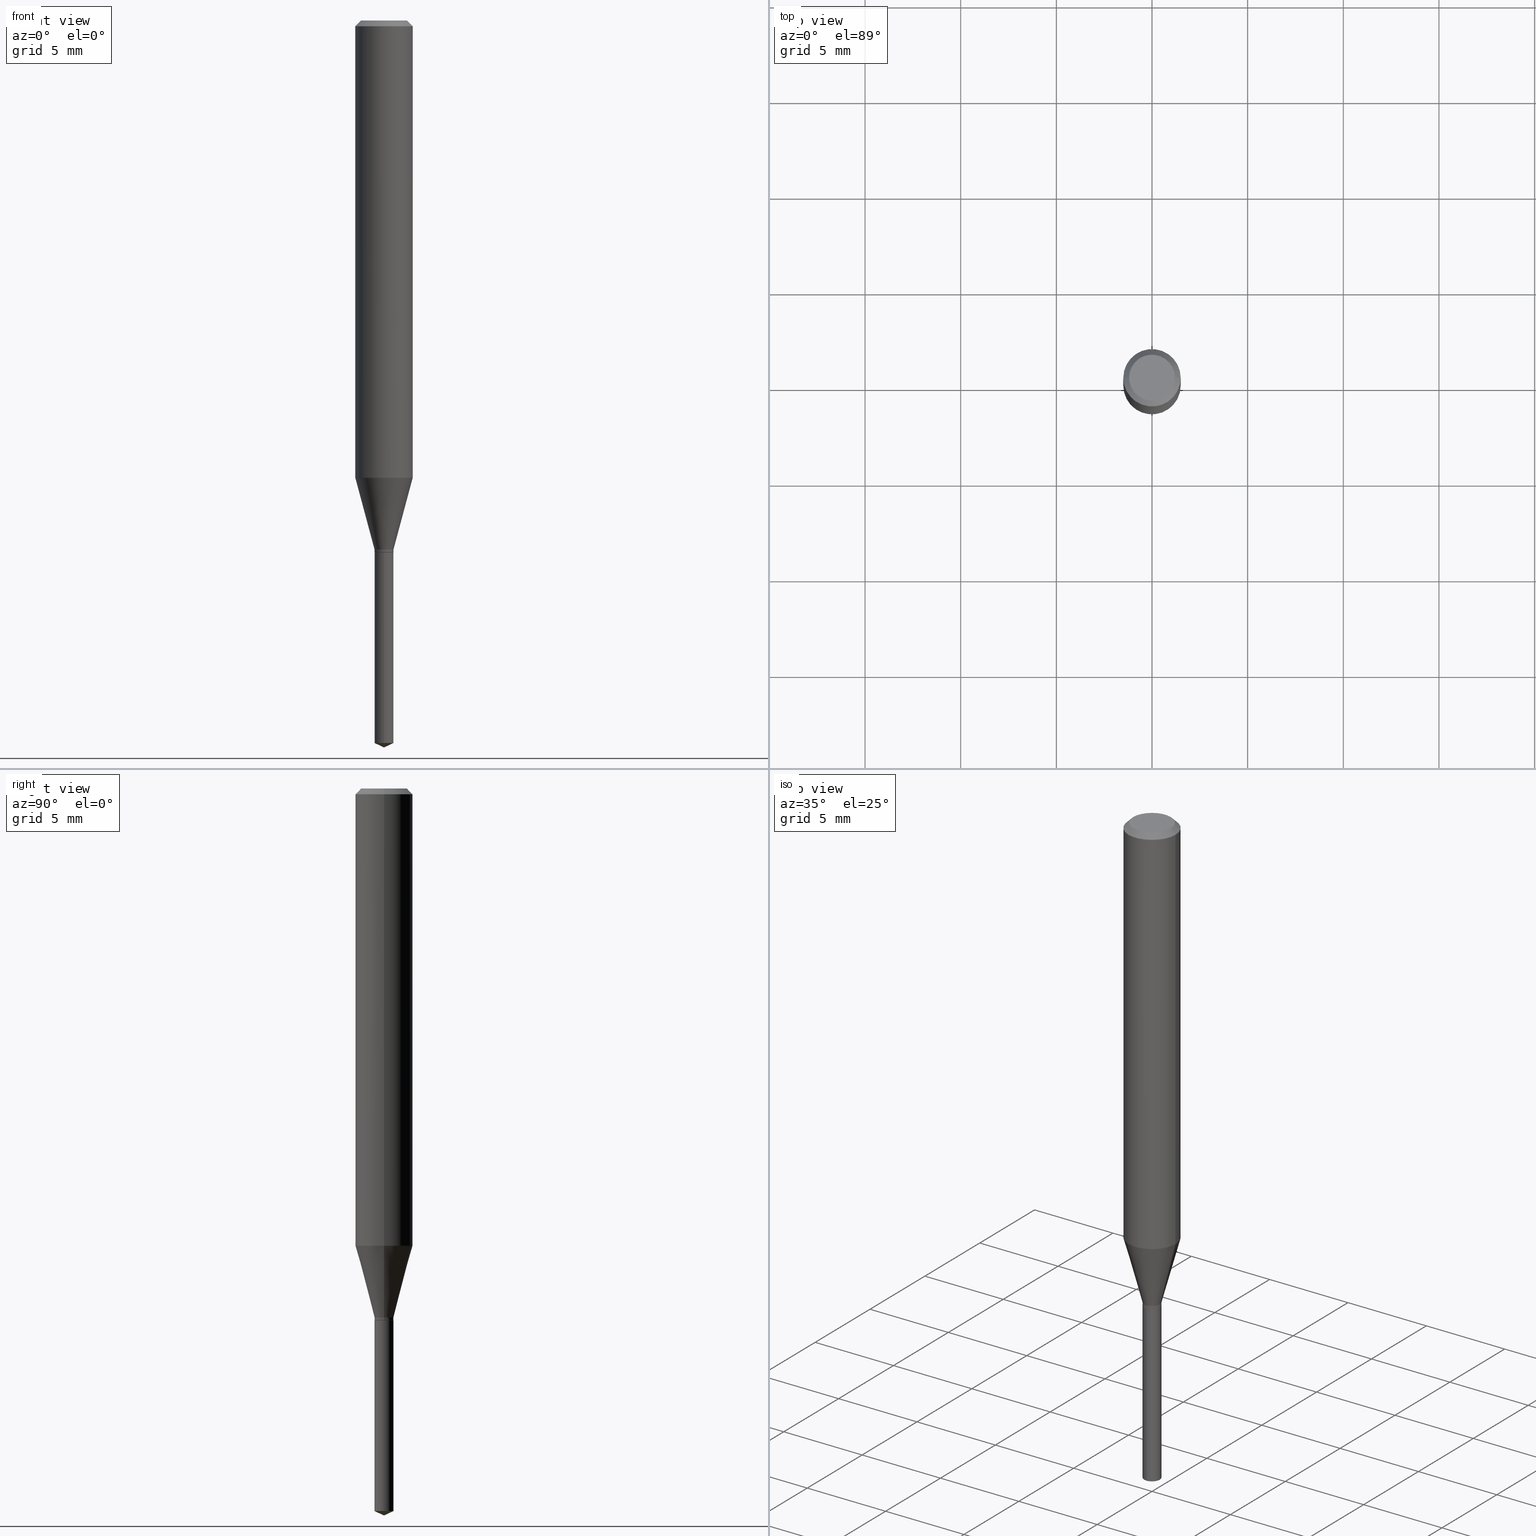
[diagram: canonical four-view strip — front | top / right | iso, engineering-drawing reading convention]
A machine part, canonical four-view strip (front | top / right | iso — engineering-drawing reading convention). The complete STEP part file that produces these views, byte-faithful:
ISO-10303-21;
HEADER;
FILE_DESCRIPTION (( 'STEP AP203' ),
    '1' );
FILE_NAME ('08145.STEP',
    '2024-04-24T13:00:46',
    ( '' ),
    ( '' ),
    'SwSTEP 2.0',
    'SolidWorks 2023',
    '' );
FILE_SCHEMA (( 'CONFIG_CONTROL_DESIGN' ));
ENDSEC;

DATA;
#1 = ORIENTED_EDGE ( 'NONE', *, *, #316, .F. ) ;
#2 = LINE ( 'NONE', #190, #179 ) ;
#3 = ADVANCED_FACE ( 'NONE', ( #29 ), #428, .T. ) ;
#4 = EDGE_LOOP ( 'NONE', ( #352, #383 ) ) ;
#5 = ORIENTED_EDGE ( 'NONE', *, *, #468, .F. ) ;
#6 = AXIS2_PLACEMENT_3D ( 'NONE', #239, #388, #199 ) ;
#7 = VECTOR ( 'NONE', #143, 39.37007874015748143 ) ;
#8 = DIRECTION ( 'NONE',  ( 1.000000000000000000, -6.982962677686258033E-15, 0.000000000000000000 ) ) ;
#9 = EDGE_CURVE ( 'NONE', #385, #34, #44, .T. ) ;
#10 = CARTESIAN_POINT ( 'NONE',  ( -1.361677722148554121E-16, -0.01950000000000381983, -1.094499999999999806 ) ) ;
#11 = CARTESIAN_POINT ( 'NONE',  ( 3.658653776152657051E-29, -5.223622565778476142E-15, -1.496099999999999985 ) ) ;
#12 = CIRCLE ( 'NONE', #120, 0.01949999999999999997 ) ;
#13 = CC_DESIGN_APPROVAL ( #454, ( #413 ) ) ;
#14 = DIRECTION ( 'NONE',  ( 1.000000000000000000, -6.982962677686258033E-15, 0.000000000000000000 ) ) ;
#15 = EDGE_CURVE ( 'NONE', #148, #189, #265, .T. ) ;
#16 = DATE_AND_TIME ( #50, #321 ) ;
#17 = DIRECTION ( 'NONE',  ( 1.000000000000000000, -6.982962677686265922E-15, 4.876176775795935793E-29 ) ) ;
#18 = CARTESIAN_POINT ( 'NONE',  ( 2.888098660104663328E-31, -4.123439461173779030E-17, -0.01181000000000006871 ) ) ;
#19 = LINE ( 'NONE', #174, #125 ) ;
#20 = DATE_AND_TIME ( #391, #243 ) ;
#21 = CARTESIAN_POINT ( 'NONE',  ( 0.01899999999999999953, -3.954102616239861778E-15, -1.094499999999999806 ) ) ;
#22 =( LENGTH_UNIT ( ) NAMED_UNIT ( * ) SI_UNIT ( $, .METRE. ) );
#23 = LINE ( 'NONE', #449, #386 ) ;
#24 = AXIS2_PLACEMENT_3D ( 'NONE', #251, #358, #17 ) ;
#25 = AXIS2_PLACEMENT_3D ( 'NONE', #410, #71, #335 ) ;
#26 = ORIENTED_EDGE ( 'NONE', *, *, #86, .F. ) ;
#27 = CARTESIAN_POINT ( 'NONE',  ( 2.676565608369631794E-29, -3.821426325363822773E-15, -1.094499999999999806 ) ) ;
#28 = EDGE_CURVE ( 'NONE', #73, #189, #210, .T. ) ;
#29 = FACE_OUTER_BOUND ( 'NONE', #112, .T. ) ;
#30 = DIRECTION ( 'NONE',  ( 1.000000000000000000, -6.982962677686266711E-15, 0.000000000000000000 ) ) ;
#31 = DIRECTION ( 'NONE',  ( -2.445460715294871217E-29, 3.491492925458510144E-15, 1.000000000000000000 ) ) ;
#32 = ORIENTED_EDGE ( 'NONE', *, *, #465, .F. ) ;
#33 = CARTESIAN_POINT ( 'NONE',  ( 0.000000000000000000, 0.000000000000000000, 0.000000000000000000 ) ) ;
#34 = VERTEX_POINT ( 'NONE', #109 ) ;
#35 = EDGE_CURVE ( 'NONE', #332, #180, #188, .T. ) ;
#36 = VECTOR ( 'NONE', #312, 39.37007874015748143 ) ;
#37 = CONICAL_SURFACE ( 'NONE', #439, 84.42940631927528727, 1.134464013796320225 ) ;
#38 = CARTESIAN_POINT ( 'NONE',  ( -0.01949999999999999997, -3.662270751991428189E-15, -1.088600000000000012 ) ) ;
#39 = DIRECTION ( 'NONE',  ( 1.000000000000000000, -6.982962677686258033E-15, 0.000000000000000000 ) ) ;
#40 = ORIENTED_EDGE ( 'NONE', *, *, #15, .F. ) ;
#41 = LINE ( 'NONE', #279, #320 ) ;
#42 = MANIFOLD_SOLID_BREP ( 'Body-Move/Copy2[1]', #462 ) ;
#43 = VERTEX_POINT ( 'NONE', #341 ) ;
#44 = CIRCLE ( 'NONE', #231, 0.05905000000000010935 ) ;
#45 = APPROVAL_PERSON_ORGANIZATION ( #132, #482, #62 ) ;
#46 = CARTESIAN_POINT ( 'NONE',  ( 2.662137342413139764E-29, -3.800826585464648242E-15, -1.088600000000000012 ) ) ;
#47 = EDGE_CURVE ( 'NONE', #34, #385, #250, .T. ) ;
#48 = DIRECTION ( 'NONE',  ( -2.445468806185136597E-29, 3.491481338843145583E-15, 1.000000000000000000 ) ) ;
#49 = CONICAL_SURFACE ( 'NONE', #328, 84.42940631927528727, 1.134464013796320225 ) ;
#50 = CALENDAR_DATE ( 2024, 24, 4 ) ;
#51 = AXIS2_PLACEMENT_3D ( 'NONE', #272, #202, #344 ) ;
#52 = CARTESIAN_POINT ( 'NONE',  ( 1.385558334732559469E-16, 0.01949999999999617664, -1.094499999999999806 ) ) ;
#53 = PERSON_AND_ORGANIZATION ( #483, #381 ) ;
#54 = CARTESIAN_POINT ( 'NONE',  ( 0.01949999999999999997, -3.936994357679530254E-15, -1.088600000000000012 ) ) ;
#55 = CALENDAR_DATE ( 2024, 24, 4 ) ;
#56 = DIRECTION ( 'NONE',  ( -1.000000000000000000, 6.982962677686266711E-15, 0.000000000000000000 ) ) ;
#57 = PERSON_AND_ORGANIZATION_ROLE ( 'classification_officer' ) ;
#58 = DESIGN_CONTEXT ( 'detailed design', #421, 'design' ) ;
#59 = ADVANCED_FACE ( 'NONE', ( #460 ), #221, .T. ) ;
#60 = CC_DESIGN_APPROVAL ( #339, ( #105 ) ) ;
#61 = CARTESIAN_POINT ( 'NONE',  ( 0.05904999999999999832, -4.463468013801466955E-16, -0.01181000000000006871 ) ) ;
#62 = APPROVAL_ROLE ( '' ) ;
#63 = FACE_OUTER_BOUND ( 'NONE', #276, .T. ) ;
#64 =( NAMED_UNIT ( * ) PLANE_ANGLE_UNIT ( ) SI_UNIT ( $, .RADIAN. ) );
#65 = ORIENTED_EDGE ( 'NONE', *, *, #215, .F. ) ;
#66 = EDGE_CURVE ( 'NONE', #148, #157, #12, .T. ) ;
#67 = FACE_OUTER_BOUND ( 'NONE', #342, .T. ) ;
#68 = EDGE_LOOP ( 'NONE', ( #373, #119, #389, #5 ) ) ;
#69 = CIRCLE ( 'NONE', #348, 0.05904999999999999832 ) ;
#70 = EDGE_LOOP ( 'NONE', ( #65, #266 ) ) ;
#71 = DIRECTION ( 'NONE',  ( -2.445468806185136597E-29, 3.491481338843145583E-15, 1.000000000000000000 ) ) ;
#72 = EDGE_LOOP ( 'NONE', ( #481, #194, #26, #153 ) ) ;
#73 = VERTEX_POINT ( 'NONE', #10 ) ;
#74 = CYLINDRICAL_SURFACE ( 'NONE', #402, 0.05905000000000005383 ) ;
#75 = CARTESIAN_POINT ( 'NONE',  ( 2.676565608369631794E-29, -3.821426325363822773E-15, -1.094499999999999806 ) ) ;
#76 = ORIENTED_EDGE ( 'NONE', *, *, #175, .F. ) ;
#77 = CARTESIAN_POINT ( 'NONE',  ( 3.636426058976498027E-29, -5.191861741382022382E-15, -1.487007000665977685 ) ) ;
#78 = ORIENTED_EDGE ( 'NONE', *, *, #236, .T. ) ;
#79 = LINE ( 'NONE', #38, #197 ) ;
#80 = ORIENTED_EDGE ( 'NONE', *, *, #104, .T. ) ;
#81 = PERSON_AND_ORGANIZATION ( #483, #381 ) ;
#82 = EDGE_LOOP ( 'NONE', ( #1, #78, #414, #225 ) ) ;
#83 = PRODUCT_RELATED_PRODUCT_CATEGORY ( 'detail', '', ( #489 ) ) ;
#84 = AXIS2_PLACEMENT_3D ( 'NONE', #425, #201, #89 ) ;
#85 = CARTESIAN_POINT ( 'NONE',  ( 3.636426058976498027E-29, -5.191861741382022382E-15, -1.487007000665977685 ) ) ;
#86 = EDGE_CURVE ( 'NONE', #43, #343, #292, .T. ) ;
#87 = ORIENTED_EDGE ( 'NONE', *, *, #15, .T. ) ;
#88 = EDGE_CURVE ( 'NONE', #382, #367, #346, .T. ) ;
#89 = DIRECTION ( 'NONE',  ( -1.000000000000000000, 6.982962677686265922E-15, -4.876176775795935793E-29 ) ) ;
#90 = APPLICATION_CONTEXT ( 'configuration controlled 3d designs of mechanical parts and assemblies' ) ;
#91 = APPROVAL_STATUS ( 'not_yet_approved' ) ;
#92 = CIRCLE ( 'NONE', #277, 0.04724000000000000421 ) ;
#93 = FACE_OUTER_BOUND ( 'NONE', #345, .T. ) ;
#94 = CIRCLE ( 'NONE', #150, 0.01949999999999999997 ) ;
#95 = APPROVAL_DATE_TIME ( #16, #482 ) ;
#96 = ADVANCED_FACE ( 'NONE', ( #351 ), #127, .F. ) ;
#97 = FACE_OUTER_BOUND ( 'NONE', #72, .T. ) ;
#98 = APPROVAL_DATE_TIME ( #139, #339 ) ;
#99 = LINE ( 'NONE', #61, #269 ) ;
#100 = EDGE_CURVE ( 'NONE', #230, #157, #354, .T. ) ;
#101 = PERSON_AND_ORGANIZATION ( #483, #381 ) ;
#102 = DIRECTION ( 'NONE',  ( -2.445460715294871217E-29, 3.491492925458510144E-15, 1.000000000000000000 ) ) ;
#103 = VECTOR ( 'NONE', #166, 39.37007874015748143 ) ;
#104 = EDGE_CURVE ( 'NONE', #382, #343, #41, .T. ) ;
#105 = SECURITY_CLASSIFICATION ( '', '', #247 ) ;
#106 = DIRECTION ( 'NONE',  ( -2.445468806185136597E-29, 3.491481338843145583E-15, 1.000000000000000000 ) ) ;
#107 = DIRECTION ( 'NONE',  ( 2.445460715294871217E-29, -3.491492925458510144E-15, -1.000000000000000000 ) ) ;
#108 = DIRECTION ( 'NONE',  ( -6.982962677686264344E-15, -1.000000000000000000, 0.000000000000000000 ) ) ;
#109 = CARTESIAN_POINT ( 'NONE',  ( 0.05905000000000010935, -3.697818775159981807E-15, -0.9409973905606506817 ) ) ;
#110 = LENGTH_MEASURE_WITH_UNIT ( LENGTH_MEASURE( 0.02539999999999999897 ), #22 );
#111 = APPROVAL_PERSON_ORGANIZATION ( #432, #339, #319 ) ;
#112 = EDGE_LOOP ( 'NONE', ( #370, #268, #224, #155 ) ) ;
#113 = FACE_OUTER_BOUND ( 'NONE', #4, .T. ) ;
#114 = DIRECTION ( 'NONE',  ( -2.445468806185136597E-29, 3.491481338843145583E-15, 1.000000000000000000 ) ) ;
#115 = LINE ( 'NONE', #152, #7 ) ;
#116 = DIRECTION ( 'NONE',  ( 1.000000000000000000, -6.982962677686255667E-15, 0.000000000000000000 ) ) ;
#117 = ORIENTED_EDGE ( 'NONE', *, *, #459, .F. ) ;
#118 = DIRECTION ( 'NONE',  ( -2.445468806185136597E-29, 3.491481338843145583E-15, 1.000000000000000000 ) ) ;
#119 = ORIENTED_EDGE ( 'NONE', *, *, #290, .T. ) ;
#120 = AXIS2_PLACEMENT_3D ( 'NONE', #85, #198, #458 ) ;
#121 = EDGE_LOOP ( 'NONE', ( #479, #87, #422, #327 ) ) ;
#122 = CIRCLE ( 'NONE', #393, 0.01899999999999999953 ) ;
#123 = FACE_OUTER_BOUND ( 'NONE', #490, .T. ) ;
#124 = CARTESIAN_POINT ( 'NONE',  ( 2.888098660104663328E-31, -4.123439461173779030E-17, -0.01181000000000006871 ) ) ;
#125 = VECTOR ( 'NONE', #440, 39.37007874015748854 ) ;
#126 = CC_DESIGN_SECURITY_CLASSIFICATION ( #105, ( #487 ) ) ;
#127 = PLANE ( 'NONE',  #84 ) ;
#128 = EDGE_CURVE ( 'NONE', #157, #73, #195, .T. ) ;
#129 = APPLICATION_PROTOCOL_DEFINITION ( 'international standard', 'config_control_design', 1994, #90 ) ;
#130 =( NAMED_UNIT ( * ) SI_UNIT ( $, .STERADIAN. ) SOLID_ANGLE_UNIT ( ) );
#131 = DIRECTION ( 'NONE',  ( 1.000000000000000000, -6.982962677686258033E-15, 0.000000000000000000 ) ) ;
#132 = PERSON_AND_ORGANIZATION ( #483, #381 ) ;
#133 = CARTESIAN_POINT ( 'NONE',  ( 2.675342873966538993E-29, -3.819680584694400481E-15, -1.093999999999999861 ) ) ;
#134 = AXIS2_PLACEMENT_3D ( 'NONE', #480, #296, #329 ) ;
#135 = COORDINATED_UNIVERSAL_TIME_OFFSET ( 5, 0, .BEHIND. ) ;
#136 = FACE_OUTER_BOUND ( 'NONE', #70, .T. ) ;
#137 = CARTESIAN_POINT ( 'NONE',  ( -0.01899999999999999953, -3.683773978395292417E-15, -1.094499999999999806 ) ) ;
#138 = CARTESIAN_POINT ( 'NONE',  ( -9.261931828548885815E-28, 1.322367415117763772E-13, 37.87397874015748300 ) ) ;
#139 = DATE_AND_TIME ( #286, #212 ) ;
#140 = EDGE_CURVE ( 'NONE', #463, #406, #310, .T. ) ;
#141 = AXIS2_PLACEMENT_3D ( 'NONE', #211, #466, #131 ) ;
#142 = ORIENTED_EDGE ( 'NONE', *, *, #404, .F. ) ;
#143 = DIRECTION ( 'NONE',  ( -2.445468806185136877E-29, 3.491481338843145188E-15, 1.000000000000000000 ) ) ;
#144 = ORIENTED_EDGE ( 'NONE', *, *, #404, .T. ) ;
#145 = CARTESIAN_POINT ( 'NONE',  ( -0.01949999999999999997, -3.671697751606305097E-15, -1.093999999999999861 ) ) ;
#146 = EDGE_LOOP ( 'NONE', ( #76, #450, #377, #302 ) ) ;
#147 = DIRECTION ( 'NONE',  ( 1.000000000000000000, -6.982962677686255667E-15, 0.000000000000000000 ) ) ;
#148 = VERTEX_POINT ( 'NONE', #309 ) ;
#149 = AXIS2_PLACEMENT_3D ( 'NONE', #218, #437, #289 ) ;
#150 = AXIS2_PLACEMENT_3D ( 'NONE', #267, #378, #333 ) ;
#151 = CC_DESIGN_DATE_AND_TIME_ASSIGNMENT ( #473, #364, ( #105 ) ) ;
#152 = CARTESIAN_POINT ( 'NONE',  ( 0.05905000000000005383, -4.123439461173744271E-16, 2.879382386107502672E-30 ) ) ;
#153 = ORIENTED_EDGE ( 'NONE', *, *, #360, .F. ) ;
#154 = UNCERTAINTY_MEASURE_WITH_UNIT (LENGTH_MEASURE( 1.000000000000000082E-05 ), #387, 'distance_accuracy_value', 'NONE');
#155 = ORIENTED_EDGE ( 'NONE', *, *, #252, .F. ) ;
#156 = DIRECTION ( 'NONE',  ( -2.445460715294871217E-29, 3.491492925458510144E-15, 1.000000000000000000 ) ) ;
#157 = VERTEX_POINT ( 'NONE', #455 ) ;
#158 = ADVANCED_FACE ( 'NONE', ( #123 ), #209, .T. ) ;
#159 = PRODUCT_DEFINITION_SHAPE ( 'NONE', 'NONE',  #413 ) ;
#160 = EDGE_LOOP ( 'NONE', ( #338, #164 ) ) ;
#161 = ADVANCED_FACE ( 'NONE', ( #97 ), #431, .T. ) ;
#162 = AXIS2_PLACEMENT_3D ( 'NONE', #46, #271, #8 ) ;
#163 = CC_DESIGN_APPROVAL ( #482, ( #487 ) ) ;
#164 = ORIENTED_EDGE ( 'NONE', *, *, #316, .T. ) ;
#165 = AXIS2_PLACEMENT_3D ( 'NONE', #427, #366, #472 ) ;
#166 = DIRECTION ( 'NONE',  ( -6.328713451373388311E-15, -0.9063077870366510469, 0.4226182617406972208 ) ) ;
#167 = PERSON_AND_ORGANIZATION_ROLE ( 'design_owner' ) ;
#168 = DIRECTION ( 'NONE',  ( -2.445468806185136597E-29, 3.491481338843145583E-15, 1.000000000000000000 ) ) ;
#169 = FACE_OUTER_BOUND ( 'NONE', #228, .T. ) ;
#170 = CC_DESIGN_PERSON_AND_ORGANIZATION_ASSIGNMENT ( #355, #167, ( #489 ) ) ;
#171 = CLOSED_SHELL ( 'NONE', ( #430, #240, #161, #254, #158, #232, #59, #451, #185, #96, #173, #3 ) ) ;
#172 = CARTESIAN_POINT ( 'NONE',  ( 2.676565608369631794E-29, -3.821426325363822773E-15, -1.094499999999999806 ) ) ;
#173 = ADVANCED_FACE ( 'NONE', ( #136 ), #475, .F. ) ;
#174 = CARTESIAN_POINT ( 'NONE',  ( 0.01949999999999999997, -3.936994357679530254E-15, -1.088600000000000012 ) ) ;
#175 = EDGE_CURVE ( 'NONE', #385, #343, #287, .T. ) ;
#176 = FACE_OUTER_BOUND ( 'NONE', #214, .T. ) ;
#177 = CYLINDRICAL_SURFACE ( 'NONE', #134, 0.01949999999999999997 ) ;
#178 = VECTOR ( 'NONE', #340, 39.37007874015748143 ) ;
#179 = VECTOR ( 'NONE', #193, 39.37007874015748143 ) ;
#180 = VERTEX_POINT ( 'NONE', #54 ) ;
#181 = DIRECTION ( 'NONE',  ( -2.445460715294871217E-29, 3.491492925458510144E-15, 1.000000000000000000 ) ) ;
#182 = DIRECTION ( 'NONE',  ( 1.000000000000000000, -6.982962677686267499E-15, 0.000000000000000000 ) ) ;
#183 = CARTESIAN_POINT ( 'NONE',  ( -9.261931828548885815E-28, 1.322367415117763772E-13, 37.87397874015748300 ) ) ;
#184 = CARTESIAN_POINT ( 'NONE',  ( 2.676565608369631794E-29, -3.821426325363822773E-15, -1.094499999999999806 ) ) ;
#185 = ADVANCED_FACE ( 'NONE', ( #63 ), #283, .T. ) ;
#186 = FACE_OUTER_BOUND ( 'NONE', #121, .T. ) ;
#187 = VERTEX_POINT ( 'NONE', #21 ) ;
#188 = CIRCLE ( 'NONE', #418, 0.01949999999999999997 ) ;
#189 = VERTEX_POINT ( 'NONE', #52 ) ;
#190 = CARTESIAN_POINT ( 'NONE',  ( 0.01899999999999999953, -3.954102616239861778E-15, -1.094499999999999806 ) ) ;
#191 = CARTESIAN_POINT ( 'NONE',  ( 2.301179765317683209E-29, -3.285474829042607282E-15, -0.9409973905606506817 ) ) ;
#192 = ORIENTED_EDGE ( 'NONE', *, *, #331, .F. ) ;
#193 = DIRECTION ( 'NONE',  ( 0.7071067811865218156, -2.468850131081987665E-15, 0.7071067811865732189 ) ) ;
#194 = ORIENTED_EDGE ( 'NONE', *, *, #175, .T. ) ;
#195 = LINE ( 'NONE', #426, #36 ) ;
#196 = VECTOR ( 'NONE', #444, 39.37007874015748143 ) ;
#197 = VECTOR ( 'NONE', #294, 39.37007874015748854 ) ;
#198 = DIRECTION ( 'NONE',  ( -2.445460715294871217E-29, 3.491492925458510144E-15, 1.000000000000000000 ) ) ;
#199 = DIRECTION ( 'NONE',  ( 1.000000000000000000, -6.982962677686266711E-15, 4.876185090822587894E-29 ) ) ;
#200 = ORIENTED_EDGE ( 'NONE', *, *, #35, .F. ) ;
#201 = DIRECTION ( 'NONE',  ( 2.438088387897960049E-29, -3.491481338843145188E-15, -1.000000000000000000 ) ) ;
#202 = DIRECTION ( 'NONE',  ( 0.000000000000000000, 0.000000000000000000, 1.000000000000000000 ) ) ;
#203 = DIRECTION ( 'NONE',  ( -0.7071067811865453523, 2.468850131082234184E-15, -0.7071067811865496822 ) ) ;
#204 = PERSON_AND_ORGANIZATION_ROLE ( 'design_supplier' ) ;
#205 = LINE ( 'NONE', #374, #178 ) ;
#206 = ADVANCED_FACE ( 'NONE', ( #169 ), #325, .T. ) ;
#207 = COORDINATED_UNIVERSAL_TIME_OFFSET ( 5, 0, .BEHIND. ) ;
#208 = VERTEX_POINT ( 'NONE', #137 ) ;
#209 = CYLINDRICAL_SURFACE ( 'NONE', #237, 0.01949999999999999997 ) ;
#210 = CIRCLE ( 'NONE', #471, 0.01949999999999999997 ) ;
#211 = CARTESIAN_POINT ( 'NONE',  ( 2.662137342413139764E-29, -3.800826585464648242E-15, -1.088600000000000012 ) ) ;
#212 = LOCAL_TIME ( 9, 0, 46.00000000000000000, #217 ) ;
#213 = MANIFOLD_SOLID_BREP ( 'Body-Move/Copy2[2]', #171 ) ;
#214 = EDGE_LOOP ( 'NONE', ( #262, #306, #411 ) ) ;
#215 = EDGE_CURVE ( 'NONE', #187, #208, #379, .T. ) ;
#216 = CARTESIAN_POINT ( 'NONE',  ( 0.000000000000000000, 0.000000000000000000, 0.000000000000000000 ) ) ;
#217 = COORDINATED_UNIVERSAL_TIME_OFFSET ( 5, 0, .BEHIND. ) ;
#218 = CARTESIAN_POINT ( 'NONE',  ( 0.000000000000000000, 0.000000000000000000, 0.000000000000000000 ) ) ;
#219 = ORIENTED_EDGE ( 'NONE', *, *, #434, .F. ) ;
#220 = CARTESIAN_POINT ( 'NONE',  ( -0.04724000000000000421, 3.504923541997677355E-16, -3.380025165670481712E-19 ) ) ;
#221 = CONICAL_SURFACE ( 'NONE', #162, 0.01949999999999999997, 0.2617993877991498519 ) ;
#222 = ORIENTED_EDGE ( 'NONE', *, *, #100, .T. ) ;
#223 = DIRECTION ( 'NONE',  ( -2.445468806185136597E-29, 3.491481338843145583E-15, 1.000000000000000000 ) ) ;
#224 = ORIENTED_EDGE ( 'NONE', *, *, #468, .T. ) ;
#225 = ORIENTED_EDGE ( 'NONE', *, *, #104, .F. ) ;
#226 = CARTESIAN_POINT ( 'NONE',  ( 8.265746106709734507E-48, -1.180129479067563789E-33, -3.380025165646692144E-19 ) ) ;
#227 = DIRECTION ( 'NONE',  ( -6.982962677686264344E-15, -1.000000000000000000, 0.000000000000000000 ) ) ;
#228 = EDGE_LOOP ( 'NONE', ( #40, #380, #448, #192 ) ) ;
#229 = CARTESIAN_POINT ( 'NONE',  ( 0.01949999999999999997, -1.361677722148821841E-16, 9.508544712802074656E-31 ) ) ;
#230 = VERTEX_POINT ( 'NONE', #399 ) ;
#231 = AXIS2_PLACEMENT_3D ( 'NONE', #191, #114, #182 ) ;
#232 = ADVANCED_FACE ( 'NONE', ( #253 ), #433, .T. ) ;
#233 = LINE ( 'NONE', #369, #284 ) ;
#234 = DIRECTION ( 'NONE',  ( 1.000000000000000000, -6.982962677686267499E-15, 0.000000000000000000 ) ) ;
#235 = DIRECTION ( 'NONE',  ( 1.000000000000000000, -6.982962677686266711E-15, 0.000000000000000000 ) ) ;
#236 = EDGE_CURVE ( 'NONE', #367, #43, #99, .T. ) ;
#237 = AXIS2_PLACEMENT_3D ( 'NONE', #216, #168, #361 ) ;
#238 = VECTOR ( 'NONE', #446, 39.37007874015748143 ) ;
#239 = CARTESIAN_POINT ( 'NONE',  ( 8.265746106709734507E-48, -1.180129479067563789E-33, -3.380025165646692144E-19 ) ) ;
#240 = ADVANCED_FACE ( 'NONE', ( #403 ), #408, .T. ) ;
#241 = CALENDAR_DATE ( 2024, 24, 4 ) ;
#242 = AXIS2_PLACEMENT_3D ( 'NONE', #184, #305, #116 ) ;
#243 = LOCAL_TIME ( 9, 0, 46.00000000000000000, #135 ) ;
#244 = DIRECTION ( 'NONE',  ( 1.000000000000000000, -6.982962677686255667E-15, 0.000000000000000000 ) ) ;
#245 = PERSON_AND_ORGANIZATION ( #483, #381 ) ;
#246 = DIRECTION ( 'NONE',  ( 1.000000000000000000, -6.982962677686266711E-15, 4.876176775795935793E-29 ) ) ;
#247 = SECURITY_CLASSIFICATION_LEVEL ( 'unclassified' ) ;
#248 = CARTESIAN_POINT ( 'NONE',  ( 2.888098660104663328E-31, -4.123439461173779030E-17, -0.01181000000000006871 ) ) ;
#249 = DATE_AND_TIME ( #241, #330 ) ;
#250 = CIRCLE ( 'NONE', #368, 0.05905000000000010935 ) ;
#251 = CARTESIAN_POINT ( 'NONE',  ( 2.676565608369631794E-29, -3.821426325363822773E-15, -1.094499999999999806 ) ) ;
#252 = EDGE_CURVE ( 'NONE', #406, #463, #438, .T. ) ;
#253 = FACE_OUTER_BOUND ( 'NONE', #420, .T. ) ;
#254 = ADVANCED_FACE ( 'NONE', ( #93 ), #401, .T. ) ;
#255 = DIRECTION ( 'NONE',  ( 6.982962677686265922E-15, 1.000000000000000000, -3.491492925458510144E-15 ) ) ;
#256 = ORIENTED_EDGE ( 'NONE', *, *, #434, .T. ) ;
#257 = ADVANCED_FACE ( 'NONE', ( #176 ), #49, .T. ) ;
#258 = CARTESIAN_POINT ( 'NONE',  ( -0.01949999999999999997, -3.671697751606305097E-15, -1.088600000000000012 ) ) ;
#259 = AXIS2_PLACEMENT_3D ( 'NONE', #172, #102, #322 ) ;
#260 = ORIENTED_EDGE ( 'NONE', *, *, #419, .T. ) ;
#261 = CIRCLE ( 'NONE', #301, 0.01949999999999999997 ) ;
#262 = ORIENTED_EDGE ( 'NONE', *, *, #100, .F. ) ;
#263 = CARTESIAN_POINT ( 'NONE',  ( 0.04724000000000000421, -3.852183633974369345E-16, -3.380025165621689721E-19 ) ) ;
#264 = CARTESIAN_POINT ( 'NONE',  ( 2.676565608369631794E-29, -3.821426325363822773E-15, -1.094499999999999806 ) ) ;
#265 = LINE ( 'NONE', #334, #196 ) ;
#266 = ORIENTED_EDGE ( 'NONE', *, *, #280, .F. ) ;
#267 = CARTESIAN_POINT ( 'NONE',  ( 2.676565608369631794E-29, -3.821426325363822773E-15, -1.094499999999999806 ) ) ;
#268 = ORIENTED_EDGE ( 'NONE', *, *, #280, .T. ) ;
#269 = VECTOR ( 'NONE', #405, 39.37007874015748143 ) ;
#270 = ORIENTED_EDGE ( 'NONE', *, *, #252, .T. ) ;
#271 = DIRECTION ( 'NONE',  ( -2.445468806185136597E-29, 3.491481338843145583E-15, 1.000000000000000000 ) ) ;
#272 = CARTESIAN_POINT ( 'NONE',  ( 0.000000000000000000, 0.000000000000000000, 0.000000000000000000 ) ) ;
#273 = ORIENTED_EDGE ( 'NONE', *, *, #465, .T. ) ;
#274 = EDGE_CURVE ( 'NONE', #180, #34, #19, .T. ) ;
#275 = AXIS2_PLACEMENT_3D ( 'NONE', #18, #469, #394 ) ;
#276 = EDGE_LOOP ( 'NONE', ( #442, #349, #80, #260 ) ) ;
#277 = AXIS2_PLACEMENT_3D ( 'NONE', #226, #118, #478 ) ;
#278 = ORIENTED_EDGE ( 'NONE', *, *, #66, .F. ) ;
#279 = CARTESIAN_POINT ( 'NONE',  ( -0.05904999999999999832, 3.711095515056362547E-16, -0.01181000000000006871 ) ) ;
#280 = EDGE_CURVE ( 'NONE', #208, #187, #122, .T. ) ;
#281 = CARTESIAN_POINT ( 'NONE',  ( 2.676565608369631794E-29, -3.821426325363822773E-15, -1.094499999999999806 ) ) ;
#282 = COORDINATED_UNIVERSAL_TIME_OFFSET ( 5, 0, .BEHIND. ) ;
#283 = CONICAL_SURFACE ( 'NONE', #275, 0.05904999999999999832, 0.7853981633974452814 ) ;
#284 = VECTOR ( 'NONE', #407, 39.37007874015748143 ) ;
#285 = DIRECTION ( 'NONE',  ( 1.000000000000000000, -6.982962677686258033E-15, 0.000000000000000000 ) ) ;
#286 = CALENDAR_DATE ( 2024, 24, 4 ) ;
#287 = LINE ( 'NONE', #397, #392 ) ;
#288 = APPROVAL_STATUS ( 'not_yet_approved' ) ;
#289 = DIRECTION ( 'NONE',  ( 1.000000000000000000, -6.982962677686265922E-15, 4.876176775795935793E-29 ) ) ;
#290 = EDGE_CURVE ( 'NONE', #208, #406, #205, .T. ) ;
#291 = DATE_TIME_ROLE ( 'creation_date' ) ;
#292 = CIRCLE ( 'NONE', #476, 0.05904999999999999832 ) ;
#293 = DIRECTION ( 'NONE',  ( -2.445468806185136597E-29, 3.491481338843145583E-15, 1.000000000000000000 ) ) ;
#294 = DIRECTION ( 'NONE',  ( -0.2588190451025211281, 5.211531920934547886E-15, 0.9659258262890679791 ) ) ;
#295 = CC_DESIGN_PERSON_AND_ORGANIZATION_ASSIGNMENT ( #53, #204, ( #487 ) ) ;
#296 = DIRECTION ( 'NONE',  ( -2.445460715294871217E-29, 3.491492925458510144E-15, 1.000000000000000000 ) ) ;
#297 = ORIENTED_EDGE ( 'NONE', *, *, #347, .T. ) ;
#298 = LINE ( 'NONE', #229, #238 ) ;
#299 = AXIS2_PLACEMENT_3D ( 'NONE', #365, #318, #246 ) ;
#300 = ORIENTED_EDGE ( 'NONE', *, *, #9, .F. ) ;
#301 = AXIS2_PLACEMENT_3D ( 'NONE', #77, #181, #108 ) ;
#302 = ORIENTED_EDGE ( 'NONE', *, *, #419, .F. ) ;
#303 = DIRECTION ( 'NONE',  ( 1.000000000000000000, -6.982962677686266711E-15, 4.876176775795935793E-29 ) ) ;
#304 = ADVANCED_FACE ( 'NONE', ( #186 ), #177, .T. ) ;
#305 = DIRECTION ( 'NONE',  ( -2.445468806185136597E-29, 3.491481338843145583E-15, 1.000000000000000000 ) ) ;
#306 = ORIENTED_EDGE ( 'NONE', *, *, #459, .T. ) ;
#307 = CARTESIAN_POINT ( 'NONE',  ( 2.888098660104663328E-31, -4.123439461173779030E-17, -0.01181000000000006871 ) ) ;
#308 = CARTESIAN_POINT ( 'NONE',  ( 2.301179765317683209E-29, -3.285474829042607282E-15, -0.9409973905606506817 ) ) ;
#309 = CARTESIAN_POINT ( 'NONE',  ( 1.385558334732558236E-16, 0.01949999999999480274, -1.487007000665977685 ) ) ;
#310 = CIRCLE ( 'NONE', #313, 0.01949999999999999997 ) ;
#311 = APPLICATION_PROTOCOL_DEFINITION ( 'international standard', 'config_control_design', 1994, #421 ) ;
#312 = DIRECTION ( 'NONE',  ( -2.445460715294871217E-29, 3.491492925458510144E-15, 1.000000000000000000 ) ) ;
#313 = AXIS2_PLACEMENT_3D ( 'NONE', #390, #48, #14 ) ;
#314 = ORIENTED_EDGE ( 'NONE', *, *, #47, .F. ) ;
#315 =( GEOMETRIC_REPRESENTATION_CONTEXT ( 3 ) GLOBAL_UNCERTAINTY_ASSIGNED_CONTEXT ( ( #154 ) ) GLOBAL_UNIT_ASSIGNED_CONTEXT ( ( #387, #64, #130 ) ) REPRESENTATION_CONTEXT ( 'NONE', 'WORKASPACE' ) );
#316 = EDGE_CURVE ( 'NONE', #367, #382, #92, .T. ) ;
#317 = DIRECTION ( 'NONE',  ( 2.445468806185136597E-29, -3.491481338843145583E-15, -1.000000000000000000 ) ) ;
#318 = DIRECTION ( 'NONE',  ( -2.445468806185136597E-29, 3.491481338843145583E-15, 1.000000000000000000 ) ) ;
#319 = APPROVAL_ROLE ( '' ) ;
#320 = VECTOR ( 'NONE', #203, 39.37007874015748143 ) ;
#321 = LOCAL_TIME ( 9, 0, 46.00000000000000000, #282 ) ;
#322 = DIRECTION ( 'NONE',  ( -6.982962677686264344E-15, -1.000000000000000000, 0.000000000000000000 ) ) ;
#323 = COORDINATED_UNIVERSAL_TIME_OFFSET ( 5, 0, .BEHIND. ) ;
#324 = CC_DESIGN_PERSON_AND_ORGANIZATION_ASSIGNMENT ( #101, #57, ( #105 ) ) ;
#325 = CYLINDRICAL_SURFACE ( 'NONE', #259, 0.01949999999999999997 ) ;
#326 = DIRECTION ( 'NONE',  ( -2.445460715294871217E-29, 3.491492925458510144E-15, 1.000000000000000000 ) ) ;
#327 = ORIENTED_EDGE ( 'NONE', *, *, #128, .F. ) ;
#328 = AXIS2_PLACEMENT_3D ( 'NONE', #138, #326, #363 ) ;
#329 = DIRECTION ( 'NONE',  ( -6.982962677686264344E-15, -1.000000000000000000, 0.000000000000000000 ) ) ;
#330 = LOCAL_TIME ( 9, 0, 46.00000000000000000, #207 ) ;
#331 = EDGE_CURVE ( 'NONE', #189, #73, #94, .T. ) ;
#332 = VERTEX_POINT ( 'NONE', #258 ) ;
#333 = DIRECTION ( 'NONE',  ( -6.982962677686264344E-15, -1.000000000000000000, 0.000000000000000000 ) ) ;
#334 = CARTESIAN_POINT ( 'NONE',  ( 1.385558334732462587E-16, 0.01949999999999617664, -1.094499999999999806 ) ) ;
#335 = DIRECTION ( 'NONE',  ( 1.000000000000000000, -6.982962677686258033E-15, 0.000000000000000000 ) ) ;
#336 = CARTESIAN_POINT ( 'NONE',  ( 2.662137342413139764E-29, -3.800826585464648242E-15, -1.088600000000000012 ) ) ;
#337 = DIRECTION ( 'NONE',  ( -2.445468806185136597E-29, 3.491481338843145583E-15, 1.000000000000000000 ) ) ;
#338 = ORIENTED_EDGE ( 'NONE', *, *, #88, .T. ) ;
#339 = APPROVAL ( #359, 'UNSPECIFIED' ) ;
#340 = DIRECTION ( 'NONE',  ( -0.7071067811865218156, 7.493145998870261075E-15, 0.7071067811865732189 ) ) ;
#341 = CARTESIAN_POINT ( 'NONE',  ( 0.05904999999999999832, -4.535783407291118600E-16, -0.01181000000000006871 ) ) ;
#342 = EDGE_LOOP ( 'NONE', ( #117, #222, #278 ) ) ;
#343 = VERTEX_POINT ( 'NONE', #443 ) ;
#344 = DIRECTION ( 'NONE',  ( 1.000000000000000000, 0.000000000000000000, 0.000000000000000000 ) ) ;
#345 = EDGE_LOOP ( 'NONE', ( #297, #273, #314, #375 ) ) ;
#346 = CIRCLE ( 'NONE', #6, 0.04724000000000000421 ) ;
#347 = EDGE_CURVE ( 'NONE', #180, #332, #409, .T. ) ;
#348 = AXIS2_PLACEMENT_3D ( 'NONE', #307, #223, #30 ) ;
#349 = ORIENTED_EDGE ( 'NONE', *, *, #88, .F. ) ;
#350 = EDGE_LOOP ( 'NONE', ( #32, #457, #447, #300 ) ) ;
#351 = FACE_OUTER_BOUND ( 'NONE', #160, .T. ) ;
#352 = ORIENTED_EDGE ( 'NONE', *, *, #28, .T. ) ;
#353 = ADVANCED_FACE ( 'NONE', ( #67 ), #37, .T. ) ;
#354 = LINE ( 'NONE', #11, #103 ) ;
#355 = PERSON_AND_ORGANIZATION ( #483, #381 ) ;
#356 = AXIS2_PLACEMENT_3D ( 'NONE', #133, #293, #285 ) ;
#357 = PERSON_AND_ORGANIZATION ( #483, #381 ) ;
#358 = DIRECTION ( 'NONE',  ( -2.438088387897960049E-29, 3.491481338843145188E-15, 1.000000000000000000 ) ) ;
#359 = APPROVAL_STATUS ( 'not_yet_approved' ) ;
#360 = EDGE_CURVE ( 'NONE', #34, #43, #115, .T. ) ;
#361 = DIRECTION ( 'NONE',  ( 1.000000000000000000, -6.982962677686265922E-15, 4.876176775795935793E-29 ) ) ;
#362 = CONICAL_SURFACE ( 'NONE', #477, 0.01899999999999999953, 0.7853981633974119747 ) ;
#363 = DIRECTION ( 'NONE',  ( -6.982962677686266711E-15, -1.000000000000000000, 3.520397390770414427E-15 ) ) ;
#364 = DATE_TIME_ROLE ( 'classification_date' ) ;
#365 = CARTESIAN_POINT ( 'NONE',  ( 0.000000000000000000, 0.000000000000000000, 0.000000000000000000 ) ) ;
#366 = DIRECTION ( 'NONE',  ( -2.445468806185136597E-29, 3.491481338843145583E-15, 1.000000000000000000 ) ) ;
#367 = VERTEX_POINT ( 'NONE', #263 ) ;
#368 = AXIS2_PLACEMENT_3D ( 'NONE', #308, #453, #234 ) ;
#369 = CARTESIAN_POINT ( 'NONE',  ( -0.01949999999999999997, 1.385558334732195360E-16, -9.591923425997065392E-31 ) ) ;
#370 = ORIENTED_EDGE ( 'NONE', *, *, #290, .F. ) ;
#371 = CARTESIAN_POINT ( 'NONE',  ( -0.05905000000000010935, -2.865899343576267000E-15, -0.9409973905606506817 ) ) ;
#372 = ORIENTED_EDGE ( 'NONE', *, *, #347, .F. ) ;
#373 = ORIENTED_EDGE ( 'NONE', *, *, #215, .T. ) ;
#374 = CARTESIAN_POINT ( 'NONE',  ( -0.01899999999999999953, -3.686423205569403618E-15, -1.094499999999999806 ) ) ;
#375 = ORIENTED_EDGE ( 'NONE', *, *, #274, .F. ) ;
#376 = CC_DESIGN_PERSON_AND_ORGANIZATION_ASSIGNMENT ( #357, #400, ( #413 ) ) ;
#377 = ORIENTED_EDGE ( 'NONE', *, *, #360, .T. ) ;
#378 = DIRECTION ( 'NONE',  ( -2.445460715294871217E-29, 3.491492925458510144E-15, 1.000000000000000000 ) ) ;
#379 = CIRCLE ( 'NONE', #165, 0.01899999999999999953 ) ;
#380 = ORIENTED_EDGE ( 'NONE', *, *, #66, .T. ) ;
#381 = ORGANIZATION ( 'UNSPECIFIED', 'UNSPECIFIED', '' ) ;
#382 = VERTEX_POINT ( 'NONE', #220 ) ;
#383 = ORIENTED_EDGE ( 'NONE', *, *, #331, .T. ) ;
#384 = CC_DESIGN_DATE_AND_TIME_ASSIGNMENT ( #20, #291, ( #413 ) ) ;
#385 = VERTEX_POINT ( 'NONE', #371 ) ;
#386 = VECTOR ( 'NONE', #415, 39.37007874015748854 ) ;
#387 =( CONVERSION_BASED_UNIT ( 'INCH', #110 ) LENGTH_UNIT ( ) NAMED_UNIT ( #396 ) );
#388 = DIRECTION ( 'NONE',  ( -2.445468806185136597E-29, 3.491481338843145583E-15, 1.000000000000000000 ) ) ;
#389 = ORIENTED_EDGE ( 'NONE', *, *, #140, .F. ) ;
#390 = CARTESIAN_POINT ( 'NONE',  ( 2.675342873966538993E-29, -3.819680584694400481E-15, -1.093999999999999861 ) ) ;
#391 = CALENDAR_DATE ( 2024, 24, 4 ) ;
#392 = VECTOR ( 'NONE', #474, 39.37007874015748143 ) ;
#393 = AXIS2_PLACEMENT_3D ( 'NONE', #281, #106, #244 ) ;
#394 = DIRECTION ( 'NONE',  ( -1.000000000000000000, 6.982962677686266711E-15, 0.000000000000000000 ) ) ;
#395 = APPROVAL_ROLE ( '' ) ;
#396 = DIMENSIONAL_EXPONENTS ( 1.000000000000000000, 0.000000000000000000, 0.000000000000000000, 0.000000000000000000, 0.000000000000000000, 0.000000000000000000, 0.000000000000000000 ) ;
#397 = CARTESIAN_POINT ( 'NONE',  ( -0.05905000000000005383, 4.195754854663395423E-16, -2.904631170795524694E-30 ) ) ;
#398 = CC_DESIGN_PERSON_AND_ORGANIZATION_ASSIGNMENT ( #245, #435, ( #487 ) ) ;
#399 = CARTESIAN_POINT ( 'NONE',  ( 3.658653776152655930E-29, -5.223622565778476142E-15, -1.496099999999999985 ) ) ;
#400 = PERSON_AND_ORGANIZATION_ROLE ( 'creator' ) ;
#401 = CONICAL_SURFACE ( 'NONE', #141, 0.01949999999999999997, 0.2617993877991498519 ) ;
#402 = AXIS2_PLACEMENT_3D ( 'NONE', #33, #488, #303 ) ;
#403 = FACE_OUTER_BOUND ( 'NONE', #82, .T. ) ;
#404 = EDGE_CURVE ( 'NONE', #406, #332, #233, .T. ) ;
#405 = DIRECTION ( 'NONE',  ( 0.7071067811865453523, -7.319954787623248157E-15, -0.7071067811865496822 ) ) ;
#406 = VERTEX_POINT ( 'NONE', #145 ) ;
#407 = DIRECTION ( 'NONE',  ( -2.445468806185136877E-29, 3.491481338843145188E-15, 1.000000000000000000 ) ) ;
#408 = CONICAL_SURFACE ( 'NONE', #486, 0.05904999999999999832, 0.7853981633974452814 ) ;
#409 = CIRCLE ( 'NONE', #25, 0.01949999999999999997 ) ;
#410 = CARTESIAN_POINT ( 'NONE',  ( 2.662137342413139764E-29, -3.800826585464648242E-15, -1.088600000000000012 ) ) ;
#411 = ORIENTED_EDGE ( 'NONE', *, *, #423, .F. ) ;
#412 = FACE_OUTER_BOUND ( 'NONE', #146, .T. ) ;
#413 = PRODUCT_DEFINITION ( 'UNKNOWN', '', #487, #58 ) ;
#414 = ORIENTED_EDGE ( 'NONE', *, *, #86, .T. ) ;
#415 = DIRECTION ( 'NONE',  ( 6.439704144417042975E-15, 0.9063077870366539335, 0.4226182617406908926 ) ) ;
#416 = DIRECTION ( 'NONE',  ( -2.445468806185136597E-29, 3.491481338843145583E-15, 1.000000000000000000 ) ) ;
#417 = CARTESIAN_POINT ( 'NONE',  ( 0.01949999999999999997, -3.955848356909282492E-15, -1.093999999999999861 ) ) ;
#418 = AXIS2_PLACEMENT_3D ( 'NONE', #336, #416, #39 ) ;
#419 = EDGE_CURVE ( 'NONE', #343, #43, #69, .T. ) ;
#420 = EDGE_LOOP ( 'NONE', ( #142, #270, #256, #200 ) ) ;
#421 = APPLICATION_CONTEXT ( 'configuration controlled 3d designs of mechanical parts and assemblies' ) ;
#422 = ORIENTED_EDGE ( 'NONE', *, *, #28, .F. ) ;
#423 = EDGE_CURVE ( 'NONE', #157, #148, #261, .T. ) ;
#424 = APPROVAL_PERSON_ORGANIZATION ( #81, #454, #395 ) ;
#425 = CARTESIAN_POINT ( 'NONE',  ( 4.132873053354867254E-48, -5.900647395337818946E-34, -1.690012582823346072E-19 ) ) ;
#426 = CARTESIAN_POINT ( 'NONE',  ( -1.361677722148554121E-16, -0.01950000000000381983, -1.094499999999999806 ) ) ;
#427 = CARTESIAN_POINT ( 'NONE',  ( 2.676565608369631794E-29, -3.821426325363822773E-15, -1.094499999999999806 ) ) ;
#428 = CONICAL_SURFACE ( 'NONE', #242, 0.01899999999999999953, 0.7853981633974119747 ) ;
#429 = LOCAL_TIME ( 9, 0, 46.00000000000000000, #323 ) ;
#430 = ADVANCED_FACE ( 'NONE', ( #484 ), #362, .T. ) ;
#431 = CYLINDRICAL_SURFACE ( 'NONE', #299, 0.05905000000000005383 ) ;
#432 = PERSON_AND_ORGANIZATION ( #483, #381 ) ;
#433 = CYLINDRICAL_SURFACE ( 'NONE', #149, 0.01949999999999999997 ) ;
#434 = EDGE_CURVE ( 'NONE', #463, #180, #298, .T. ) ;
#435 = PERSON_AND_ORGANIZATION_ROLE ( 'creator' ) ;
#436 = ADVANCED_BREP_SHAPE_REPRESENTATION ( '08145', ( #42, #213, #51 ), #315 ) ;
#437 = DIRECTION ( 'NONE',  ( -2.445468806185136597E-29, 3.491481338843145583E-15, 1.000000000000000000 ) ) ;
#438 = CIRCLE ( 'NONE', #356, 0.01949999999999999997 ) ;
#439 = AXIS2_PLACEMENT_3D ( 'NONE', #183, #156, #441 ) ;
#440 = DIRECTION ( 'NONE',  ( 0.2588190451025211281, 1.565188264969622954E-15, 0.9659258262890679791 ) ) ;
#441 = DIRECTION ( 'NONE',  ( -6.982962677686266711E-15, -1.000000000000000000, 3.520397390770414427E-15 ) ) ;
#442 = ORIENTED_EDGE ( 'NONE', *, *, #236, .F. ) ;
#443 = CARTESIAN_POINT ( 'NONE',  ( -0.05904999999999999832, -1.243779126360832618E-15, -0.01181000000000006871 ) ) ;
#444 = DIRECTION ( 'NONE',  ( -2.445460715294871217E-29, 3.491492925458510144E-15, 1.000000000000000000 ) ) ;
#445 = ADVANCED_FACE ( 'NONE', ( #113 ), #452, .F. ) ;
#446 = DIRECTION ( 'NONE',  ( -2.445468806185136877E-29, 3.491481338843145188E-15, 1.000000000000000000 ) ) ;
#447 = ORIENTED_EDGE ( 'NONE', *, *, #274, .T. ) ;
#448 = ORIENTED_EDGE ( 'NONE', *, *, #128, .T. ) ;
#449 = CARTESIAN_POINT ( 'NONE',  ( 3.658671642415649744E-29, -5.223597202677443246E-15, -1.496099999999999985 ) ) ;
#450 = ORIENTED_EDGE ( 'NONE', *, *, #9, .T. ) ;
#451 = ADVANCED_FACE ( 'NONE', ( #412 ), #74, .T. ) ;
#452 = PLANE ( 'NONE',  #456 ) ;
#453 = DIRECTION ( 'NONE',  ( -2.445468806185136597E-29, 3.491481338843145583E-15, 1.000000000000000000 ) ) ;
#454 = APPROVAL ( #91, 'UNSPECIFIED' ) ;
#455 = CARTESIAN_POINT ( 'NONE',  ( -1.361677722148457732E-16, -0.01950000000000518333, -1.487007000665977685 ) ) ;
#456 = AXIS2_PLACEMENT_3D ( 'NONE', #27, #107, #255 ) ;
#457 = ORIENTED_EDGE ( 'NONE', *, *, #35, .T. ) ;
#458 = DIRECTION ( 'NONE',  ( -6.982962677686264344E-15, -1.000000000000000000, 0.000000000000000000 ) ) ;
#459 = EDGE_CURVE ( 'NONE', #230, #148, #23, .T. ) ;
#460 = FACE_OUTER_BOUND ( 'NONE', #350, .T. ) ;
#461 = MECHANICAL_CONTEXT ( 'NONE', #90, 'mechanical' ) ;
#462 = CLOSED_SHELL ( 'NONE', ( #304, #257, #353, #206, #445 ) ) ;
#463 = VERTEX_POINT ( 'NONE', #417 ) ;
#464 = DIRECTION ( 'NONE',  ( -2.445468806185136597E-29, 3.491481338843145583E-15, 1.000000000000000000 ) ) ;
#465 = EDGE_CURVE ( 'NONE', #332, #385, #79, .T. ) ;
#466 = DIRECTION ( 'NONE',  ( -2.445468806185136597E-29, 3.491481338843145583E-15, 1.000000000000000000 ) ) ;
#467 = APPROVAL_DATE_TIME ( #249, #454 ) ;
#468 = EDGE_CURVE ( 'NONE', #187, #463, #2, .T. ) ;
#469 = DIRECTION ( 'NONE',  ( 2.445468806185136597E-29, -3.491481338843145583E-15, -1.000000000000000000 ) ) ;
#470 = SHAPE_DEFINITION_REPRESENTATION ( #159, #436 ) ;
#471 = AXIS2_PLACEMENT_3D ( 'NONE', #75, #31, #227 ) ;
#472 = DIRECTION ( 'NONE',  ( 1.000000000000000000, -6.982962677686255667E-15, 0.000000000000000000 ) ) ;
#473 = DATE_AND_TIME ( #55, #429 ) ;
#474 = DIRECTION ( 'NONE',  ( -2.445468806185136877E-29, 3.491481338843145188E-15, 1.000000000000000000 ) ) ;
#475 = PLANE ( 'NONE',  #24 ) ;
#476 = AXIS2_PLACEMENT_3D ( 'NONE', #124, #464, #235 ) ;
#477 = AXIS2_PLACEMENT_3D ( 'NONE', #264, #337, #147 ) ;
#478 = DIRECTION ( 'NONE',  ( 1.000000000000000000, -6.982962677686266711E-15, 4.876185090822587894E-29 ) ) ;
#479 = ORIENTED_EDGE ( 'NONE', *, *, #423, .T. ) ;
#480 = CARTESIAN_POINT ( 'NONE',  ( 2.676565608369631794E-29, -3.821426325363822773E-15, -1.094499999999999806 ) ) ;
#481 = ORIENTED_EDGE ( 'NONE', *, *, #47, .T. ) ;
#482 = APPROVAL ( #288, 'UNSPECIFIED' ) ;
#483 = PERSON ( 'UNSPECIFIED', 'UNSPECIFIED', 'UNSPECIFIED', ('UNSPECIFIED'), ('UNSPECIFIED'), ('UNSPECIFIED') ) ;
#484 = FACE_OUTER_BOUND ( 'NONE', #68, .T. ) ;
#485 = ORIENTED_EDGE ( 'NONE', *, *, #140, .T. ) ;
#486 = AXIS2_PLACEMENT_3D ( 'NONE', #248, #317, #56 ) ;
#487 = PRODUCT_DEFINITION_FORMATION_WITH_SPECIFIED_SOURCE ( 'ANY', '', #489, .NOT_KNOWN. ) ;
#488 = DIRECTION ( 'NONE',  ( -2.445468806185136597E-29, 3.491481338843145583E-15, 1.000000000000000000 ) ) ;
#489 = PRODUCT ( '08145', '08145', '', ( #461 ) ) ;
#490 = EDGE_LOOP ( 'NONE', ( #485, #144, #372, #219 ) ) ;
ENDSEC;
END-ISO-10303-21;
